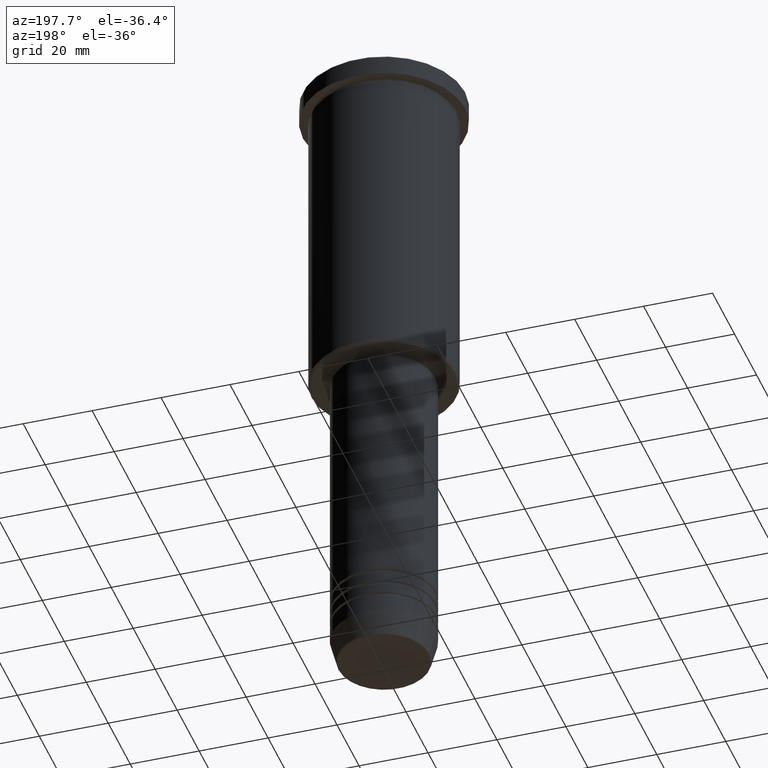
[diagram: clean part render]
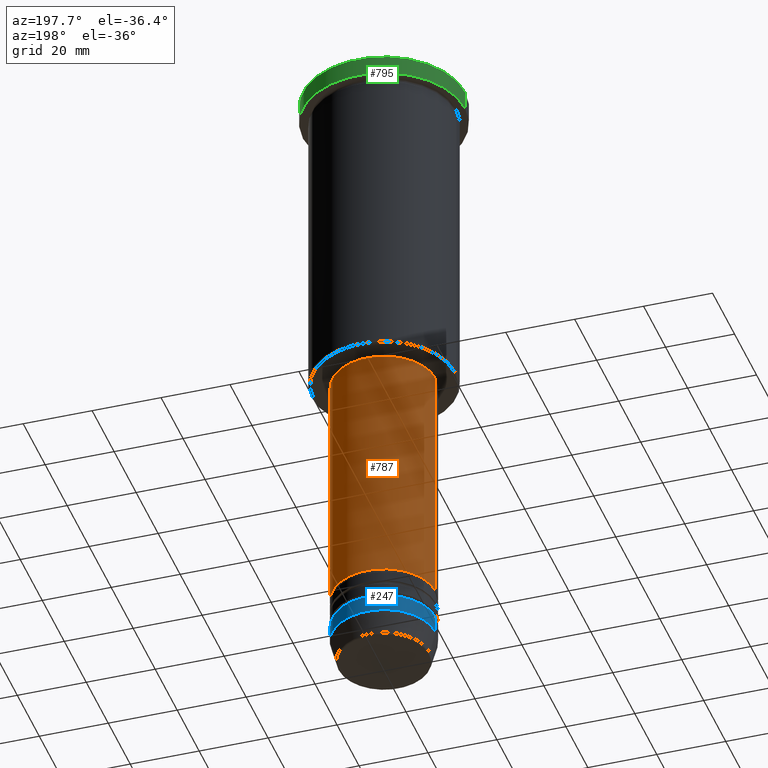
[diagram: same view with three faces highlighted in distinct colors, each labeled with its STEP entity id]
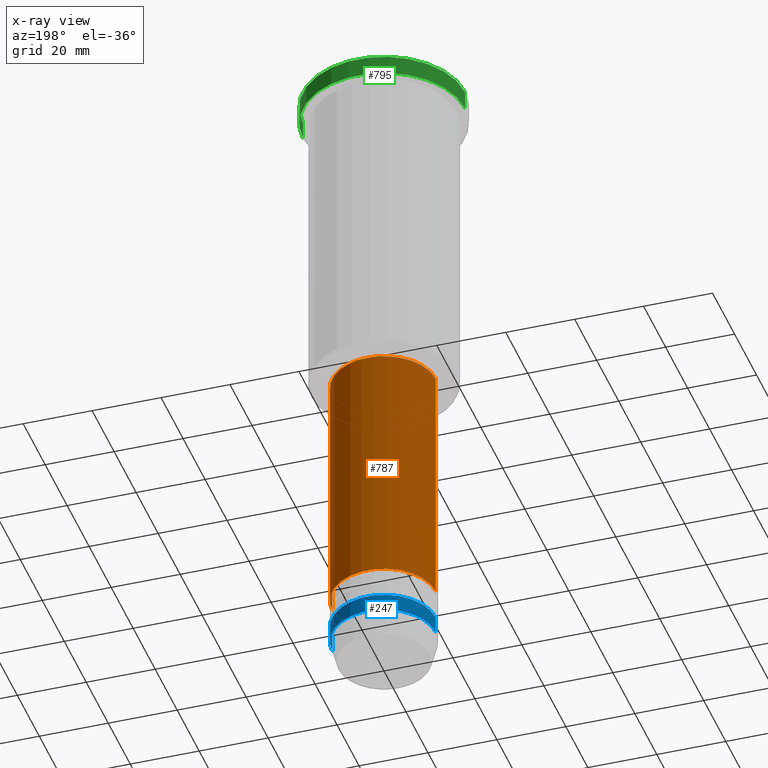
[diagram: x-ray of the same camera — body ghosted, the three highlighted faces saturated]
A machine part, auxiliary view with three faces highlighted in distinct colors.
The next image is the same camera in x-ray (body ghosted, the three faces saturated) — at least one of them is partly hidden behind the body in this view.
Their STEP definitions:

[orange] entity #787 — the highlighted cylindrical surface (partial cylindrical patch) has radius 15 mm, axis along (-0, -0, 1).
#65 = EDGE_CURVE ( 'NONE', #480, #983, #1013, .T. ) ;
#89 = EDGE_CURVE ( 'NONE', #983, #584, #444, .T. ) ;
#114 = VERTEX_POINT ( 'NONE', #992 ) ;
#117 = CARTESIAN_POINT ( 'NONE',  ( 15.00000000000000000, 0.000000000000000000, -169.9999999999999147 ) ) ;
#155 = CARTESIAN_POINT ( 'NONE',  ( 15.00000000000000000, 0.000000000000000000, 0.000000000000000000 ) ) ;
#159 = DIRECTION ( 'NONE',  ( -0.000000000000000000, -0.000000000000000000, 1.000000000000000000 ) ) ;
#204 = VECTOR ( 'NONE', #759, 1000.000000000000000 ) ;
#278 = AXIS2_PLACEMENT_3D ( 'NONE', #885, #812, #339 ) ;
#335 = AXIS2_PLACEMENT_3D ( 'NONE', #638, #912, #537 ) ;
#338 = EDGE_LOOP ( 'NONE', ( #916, #835, #1091, #957 ) ) ;
#339 = DIRECTION ( 'NONE',  ( 1.000000000000000000, 0.000000000000000000, 0.000000000000000000 ) ) ;
#357 = CARTESIAN_POINT ( 'NONE',  ( -15.00000000000000000, 1.836970198721029589E-15, -169.9999999999999147 ) ) ;
#408 = EDGE_CURVE ( 'NONE', #114, #584, #1130, .T. ) ;
#444 = LINE ( 'NONE', #703, #671 ) ;
#480 = VERTEX_POINT ( 'NONE', #117 ) ;
#537 = DIRECTION ( 'NONE',  ( 1.000000000000000000, 0.000000000000000000, 0.000000000000000000 ) ) ;
#584 = VERTEX_POINT ( 'NONE', #1058 ) ;
#638 = CARTESIAN_POINT ( 'NONE',  ( 0.000000000000000000, 0.000000000000000000, 0.000000000000000000 ) ) ;
#671 = VECTOR ( 'NONE', #987, 1000.000000000000000 ) ;
#703 = CARTESIAN_POINT ( 'NONE',  ( -15.00000000000000000, 1.836970198721029589E-15, 0.000000000000000000 ) ) ;
#719 = CYLINDRICAL_SURFACE ( 'NONE', #335, 15.00000000000000000 ) ;
#759 = DIRECTION ( 'NONE',  ( -0.000000000000000000, -0.000000000000000000, 1.000000000000000000 ) ) ;
#787 = ADVANCED_FACE ( 'NONE', ( #991 ), #719, .T. ) ;
#793 = CARTESIAN_POINT ( 'NONE',  ( 0.000000000000000000, 0.000000000000000000, -169.9999999999999147 ) ) ;
#812 = DIRECTION ( 'NONE',  ( -0.000000000000000000, -0.000000000000000000, 1.000000000000000000 ) ) ;
#835 = ORIENTED_EDGE ( 'NONE', *, *, #89, .T. ) ;
#885 = CARTESIAN_POINT ( 'NONE',  ( 0.000000000000000000, 0.000000000000000000, -97.00000000000002842 ) ) ;
#887 = EDGE_CURVE ( 'NONE', #480, #114, #928, .T. ) ;
#912 = DIRECTION ( 'NONE',  ( -0.000000000000000000, -0.000000000000000000, 1.000000000000000000 ) ) ;
#916 = ORIENTED_EDGE ( 'NONE', *, *, #65, .T. ) ;
#928 = LINE ( 'NONE', #155, #204 ) ;
#957 = ORIENTED_EDGE ( 'NONE', *, *, #887, .F. ) ;
#983 = VERTEX_POINT ( 'NONE', #357 ) ;
#987 = DIRECTION ( 'NONE',  ( -0.000000000000000000, -0.000000000000000000, 1.000000000000000000 ) ) ;
#991 = FACE_OUTER_BOUND ( 'NONE', #338, .T. ) ;
#992 = CARTESIAN_POINT ( 'NONE',  ( 15.00000000000000000, 0.000000000000000000, -97.00000000000002842 ) ) ;
#1013 = CIRCLE ( 'NONE', #1070, 15.00000000000000000 ) ;
#1058 = CARTESIAN_POINT ( 'NONE',  ( -15.00000000000000000, 1.836970198721029589E-15, -97.00000000000002842 ) ) ;
#1070 = AXIS2_PLACEMENT_3D ( 'NONE', #793, #159, #1073 ) ;
#1073 = DIRECTION ( 'NONE',  ( 1.000000000000000000, 0.000000000000000000, 0.000000000000000000 ) ) ;
#1091 = ORIENTED_EDGE ( 'NONE', *, *, #408, .F. ) ;
#1130 = CIRCLE ( 'NONE', #278, 15.00000000000000000 ) ;

[blue] entity #247 — the highlighted cylindrical surface (partial cylindrical patch) has radius 15 mm, axis along (-0, -0, 1).
#45 = LINE ( 'NONE', #218, #277 ) ;
#55 = CARTESIAN_POINT ( 'NONE',  ( 15.00000000000000000, 0.000000000000000000, 0.000000000000000000 ) ) ;
#71 = CARTESIAN_POINT ( 'NONE',  ( -15.00000000000000000, 1.836970198721029589E-15, -179.0000000000000284 ) ) ;
#72 = EDGE_CURVE ( 'NONE', #424, #762, #881, .T. ) ;
#82 = DIRECTION ( 'NONE',  ( -0.000000000000000000, -0.000000000000000000, 1.000000000000000000 ) ) ;
#118 = CYLINDRICAL_SURFACE ( 'NONE', #593, 15.00000000000000000 ) ;
#130 = CARTESIAN_POINT ( 'NONE',  ( -15.00000000000000000, 1.836970198721029589E-15, -184.0000000000000000 ) ) ;
#147 = FACE_OUTER_BOUND ( 'NONE', #471, .T. ) ;
#218 = CARTESIAN_POINT ( 'NONE',  ( -15.00000000000000000, 1.836970198721029589E-15, 0.000000000000000000 ) ) ;
#247 = ADVANCED_FACE ( 'NONE', ( #147 ), #118, .T. ) ;
#259 = EDGE_CURVE ( 'NONE', #267, #1031, #45, .T. ) ;
#260 = DIRECTION ( 'NONE',  ( -0.000000000000000000, -0.000000000000000000, 1.000000000000000000 ) ) ;
#267 = VERTEX_POINT ( 'NONE', #130 ) ;
#277 = VECTOR ( 'NONE', #476, 1000.000000000000000 ) ;
#292 = ORIENTED_EDGE ( 'NONE', *, *, #259, .T. ) ;
#402 = EDGE_CURVE ( 'NONE', #762, #1031, #1183, .T. ) ;
#410 = DIRECTION ( 'NONE',  ( -0.000000000000000000, -0.000000000000000000, 1.000000000000000000 ) ) ;
#424 = VERTEX_POINT ( 'NONE', #1159 ) ;
#439 = CARTESIAN_POINT ( 'NONE',  ( 15.00000000000000000, 0.000000000000000000, -179.0000000000000284 ) ) ;
#442 = DIRECTION ( 'NONE',  ( 1.000000000000000000, 0.000000000000000000, 0.000000000000000000 ) ) ;
#471 = EDGE_LOOP ( 'NONE', ( #648, #292, #1167, #853 ) ) ;
#476 = DIRECTION ( 'NONE',  ( -0.000000000000000000, -0.000000000000000000, 1.000000000000000000 ) ) ;
#554 = AXIS2_PLACEMENT_3D ( 'NONE', #1050, #989, #796 ) ;
#593 = AXIS2_PLACEMENT_3D ( 'NONE', #775, #410, #1025 ) ;
#607 = CARTESIAN_POINT ( 'NONE',  ( 0.000000000000000000, 0.000000000000000000, -179.0000000000000284 ) ) ;
#646 = EDGE_CURVE ( 'NONE', #424, #267, #995, .T. ) ;
#648 = ORIENTED_EDGE ( 'NONE', *, *, #646, .T. ) ;
#762 = VERTEX_POINT ( 'NONE', #439 ) ;
#775 = CARTESIAN_POINT ( 'NONE',  ( 0.000000000000000000, 0.000000000000000000, 0.000000000000000000 ) ) ;
#796 = DIRECTION ( 'NONE',  ( 1.000000000000000000, 0.000000000000000000, 0.000000000000000000 ) ) ;
#853 = ORIENTED_EDGE ( 'NONE', *, *, #72, .F. ) ;
#881 = LINE ( 'NONE', #55, #900 ) ;
#900 = VECTOR ( 'NONE', #260, 1000.000000000000000 ) ;
#989 = DIRECTION ( 'NONE',  ( -0.000000000000000000, -0.000000000000000000, 1.000000000000000000 ) ) ;
#995 = CIRCLE ( 'NONE', #554, 15.00000000000000000 ) ;
#1025 = DIRECTION ( 'NONE',  ( 1.000000000000000000, 0.000000000000000000, 0.000000000000000000 ) ) ;
#1031 = VERTEX_POINT ( 'NONE', #71 ) ;
#1050 = CARTESIAN_POINT ( 'NONE',  ( 0.000000000000000000, 0.000000000000000000, -184.0000000000000000 ) ) ;
#1072 = AXIS2_PLACEMENT_3D ( 'NONE', #607, #82, #442 ) ;
#1159 = CARTESIAN_POINT ( 'NONE',  ( 15.00000000000000000, 0.000000000000000000, -184.0000000000000000 ) ) ;
#1167 = ORIENTED_EDGE ( 'NONE', *, *, #402, .F. ) ;
#1183 = CIRCLE ( 'NONE', #1072, 15.00000000000000000 ) ;

[green] entity #795 — the highlighted cylindrical surface (partial cylindrical patch) has radius 23.5 mm, axis along (-0, -0, 1).
#56 = CARTESIAN_POINT ( 'NONE',  ( 23.50000000000000000, 0.000000000000000000, 0.000000000000000000 ) ) ;
#120 = CIRCLE ( 'NONE', #710, 23.50000000000000000 ) ;
#188 = DIRECTION ( 'NONE',  ( -0.000000000000000000, -0.000000000000000000, 1.000000000000000000 ) ) ;
#196 = VERTEX_POINT ( 'NONE', #1097 ) ;
#209 = VERTEX_POINT ( 'NONE', #549 ) ;
#221 = CIRCLE ( 'NONE', #237, 23.50000000000000000 ) ;
#237 = AXIS2_PLACEMENT_3D ( 'NONE', #999, #188, #907 ) ;
#241 = EDGE_CURVE ( 'NONE', #288, #209, #120, .T. ) ;
#268 = DIRECTION ( 'NONE',  ( -0.000000000000000000, -0.000000000000000000, 1.000000000000000000 ) ) ;
#287 = VERTEX_POINT ( 'NONE', #851 ) ;
#288 = VERTEX_POINT ( 'NONE', #954 ) ;
#298 = EDGE_CURVE ( 'NONE', #196, #288, #502, .T. ) ;
#319 = ORIENTED_EDGE ( 'NONE', *, *, #845, .F. ) ;
#350 = VECTOR ( 'NONE', #1142, 1000.000000000000000 ) ;
#358 = EDGE_LOOP ( 'NONE', ( #919, #570, #1135, #319 ) ) ;
#464 = FACE_OUTER_BOUND ( 'NONE', #358, .T. ) ;
#502 = LINE ( 'NONE', #1038, #350 ) ;
#549 = CARTESIAN_POINT ( 'NONE',  ( 23.50000000000000000, 0.000000000000000000, -0.5000000000000281997 ) ) ;
#566 = DIRECTION ( 'NONE',  ( -0.000000000000000000, -0.000000000000000000, 1.000000000000000000 ) ) ;
#570 = ORIENTED_EDGE ( 'NONE', *, *, #298, .T. ) ;
#571 = LINE ( 'NONE', #56, #1131 ) ;
#625 = DIRECTION ( 'NONE',  ( 1.000000000000000000, 0.000000000000000000, 0.000000000000000000 ) ) ;
#659 = DIRECTION ( 'NONE',  ( 0.000000000000000000, 0.000000000000000000, -1.000000000000000000 ) ) ;
#710 = AXIS2_PLACEMENT_3D ( 'NONE', #780, #659, #862 ) ;
#780 = CARTESIAN_POINT ( 'NONE',  ( 0.000000000000000000, 0.000000000000000000, -0.5000000000000281997 ) ) ;
#795 = ADVANCED_FACE ( 'NONE', ( #464 ), #1086, .T. ) ;
#829 = EDGE_CURVE ( 'NONE', #287, #196, #221, .T. ) ;
#845 = EDGE_CURVE ( 'NONE', #287, #209, #571, .T. ) ;
#851 = CARTESIAN_POINT ( 'NONE',  ( 23.50000000000000000, 0.000000000000000000, -5.999999999999993783 ) ) ;
#862 = DIRECTION ( 'NONE',  ( 1.000000000000000000, 0.000000000000000000, 0.000000000000000000 ) ) ;
#907 = DIRECTION ( 'NONE',  ( 1.000000000000000000, 0.000000000000000000, 0.000000000000000000 ) ) ;
#919 = ORIENTED_EDGE ( 'NONE', *, *, #829, .T. ) ;
#954 = CARTESIAN_POINT ( 'NONE',  ( -23.50000000000000000, 2.877919977996280320E-15, -0.5000000000000281997 ) ) ;
#999 = CARTESIAN_POINT ( 'NONE',  ( 0.000000000000000000, 0.000000000000000000, -5.999999999999993783 ) ) ;
#1038 = CARTESIAN_POINT ( 'NONE',  ( -23.50000000000000000, 2.877919977996280320E-15, 0.000000000000000000 ) ) ;
#1086 = CYLINDRICAL_SURFACE ( 'NONE', #1090, 23.50000000000000000 ) ;
#1090 = AXIS2_PLACEMENT_3D ( 'NONE', #1179, #268, #625 ) ;
#1097 = CARTESIAN_POINT ( 'NONE',  ( -23.50000000000000000, 2.877919977996280320E-15, -5.999999999999993783 ) ) ;
#1131 = VECTOR ( 'NONE', #566, 1000.000000000000000 ) ;
#1135 = ORIENTED_EDGE ( 'NONE', *, *, #241, .T. ) ;
#1142 = DIRECTION ( 'NONE',  ( -0.000000000000000000, -0.000000000000000000, 1.000000000000000000 ) ) ;
#1179 = CARTESIAN_POINT ( 'NONE',  ( 0.000000000000000000, 0.000000000000000000, 0.000000000000000000 ) ) ;